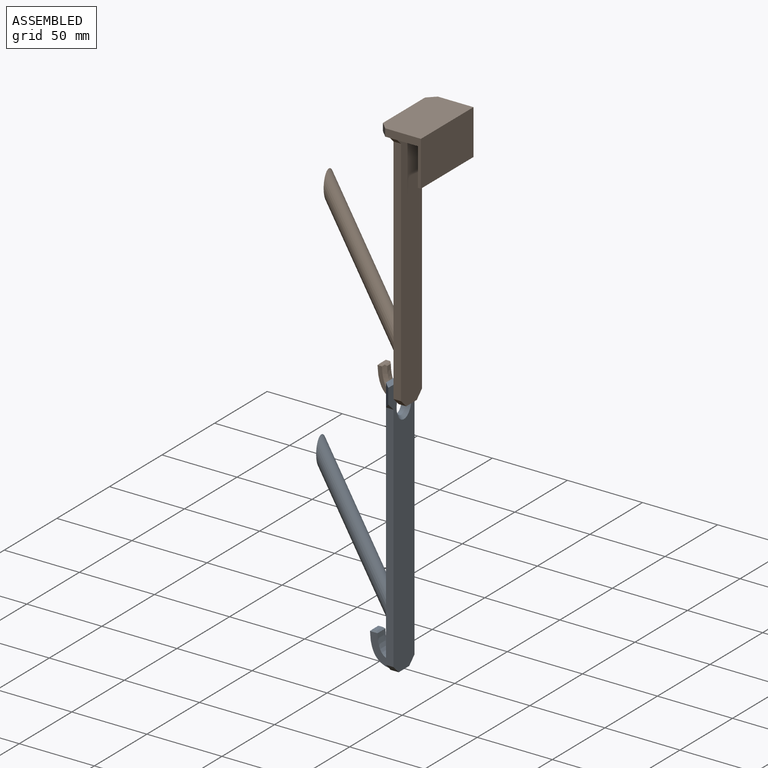
[diagram: assembled view]
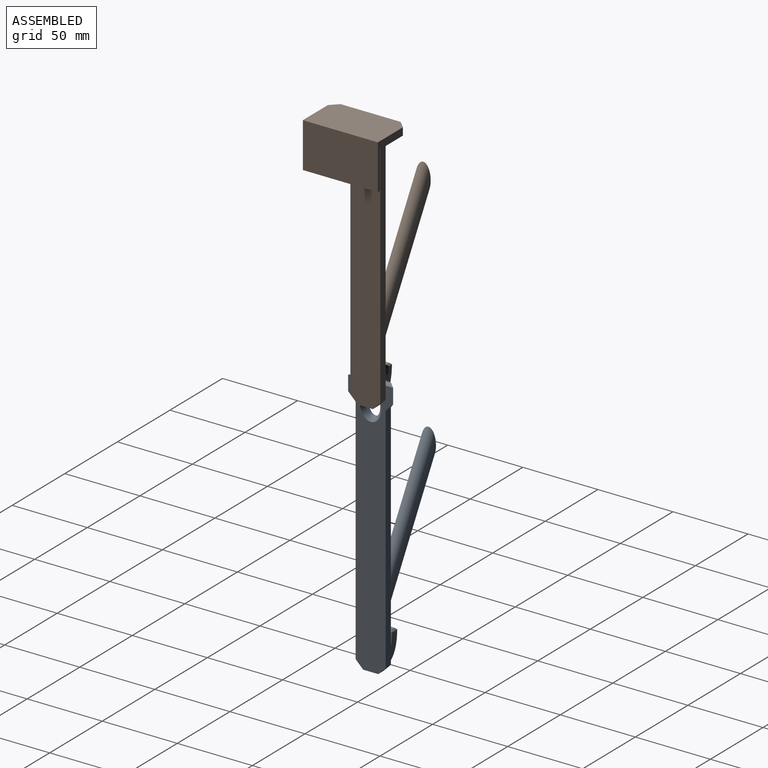
[diagram: assembled view, second angle]
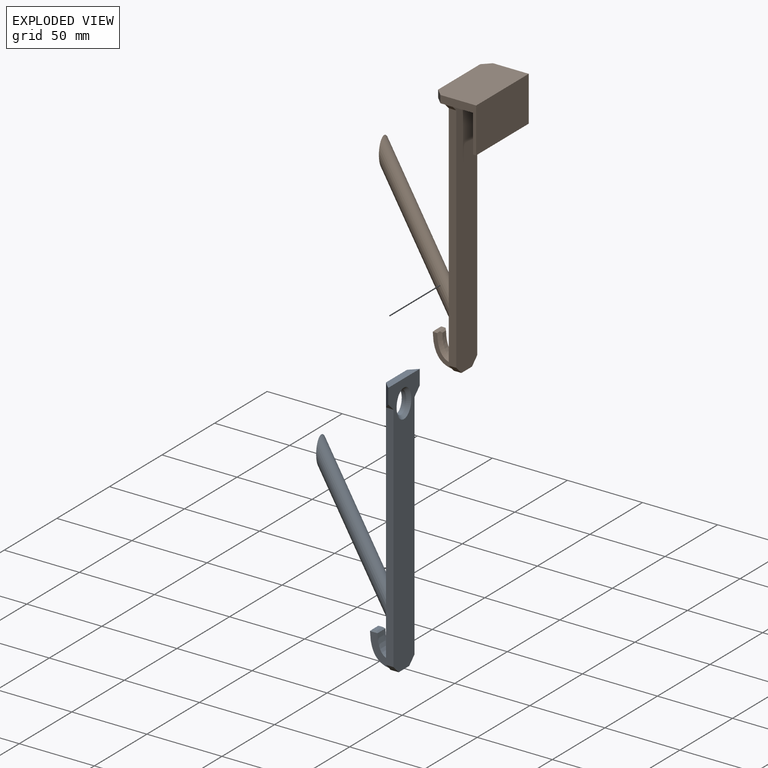
[diagram: exploded view]
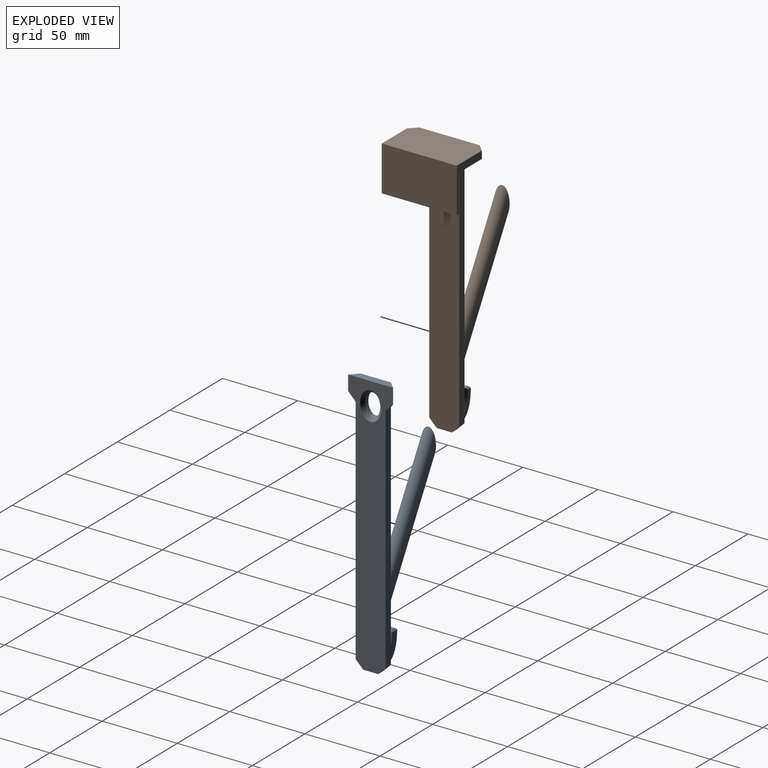
[diagram: exploded view, second angle]
ASSEMBLY  parts=2 mates=2
PART A: 29 faces, bbox 67.2x30.1x175.1 mm
  f0: plane 20x14.92mm, normal (0,1,0), area 108mm2, adj f13,f14,f15,f16,f19,f21
  f1: plane 10x5mm, normal (0,0,-1), area 50mm2, adj f6,f14,f22,f23
  f2: plane 20x14.92mm, normal (0,-1,0), area 108mm2, adj f13,f14,f16,f17,f20,f21
  f3: plane 5.5x3mm, normal (0,0,1), area 16.5mm2, adj f18,f19,f20,f21
  f4: plane 174.26x20.01mm, normal (-1,0,0), area 3023mm2, adj f5,f7,f8,f15,f16,f17,f22,f23
  f5: plane 30x5mm, normal (0,0,1), area 125mm2, adj f4,f6,f26,f27
  f6: plane 175.1x30.1mm, normal (1,0,0), area 3389mm2, adj f1,f5,f7,f8,f11,f12,f22,f23
  f7: plane 155x5mm, normal (0,-1,0), area 775mm2, adj f4,f6,f11,f22
  f8: plane 155x5mm, normal (0,1,0), area 775mm2, adj f4,f6,f12,f23
  f9: plane 20x10mm, normal (-1,0,0), area 157.1mm2, adj f10
  f10: cylinder r=5mm len=106.3mm, axis (-0.5,0,0.87), area 3055.8mm2, adj f9,f24
  f11: plane 5x5mm, normal (0,-0.71,-0.71), area 17.7mm2, adj f6,f7,f26
  f12: plane 5x5mm, normal (0,0.71,-0.71), area 17.7mm2, adj f6,f8,f27
  f13: extruded ~13.84x7.66mm, area 130.1mm2, adj f0,f2,f16,f18,f19,f20
  f14: extruded ~18.98x14.99mm, area 209.7mm2, adj f0,f1,f2,f15,f17,f21,f22,f23
  f15: plane 7.16x2.01mm, normal (-0.71,0.71,0), area 17.4mm2, adj f0,f4,f14,f16,f23
  f16: plane 11.5x2.33mm, normal (-0.65,0,0.76), area 28.1mm2, adj f0,f2,f4,f13,f15,f17
  f17: plane 7.16x2.01mm, normal (-0.71,-0.71,0), area 17.4mm2, adj f2,f4,f14,f16,f22
  f18: plane 7.46x1mm, normal (0.7,0,0.71), area 9.1mm2, adj f3,f13,f19,f20
  f19: plane 4.98x1mm, normal (0,0.71,0.71), area 5.7mm2, adj f0,f3,f13,f18,f21
  f20: plane 4.98x1mm, normal (0,-0.71,0.71), area 5.7mm2, adj f2,f3,f13,f18,f21
  f21: plane 7.5x1.02mm, normal (-0.71,0,0.7), area 9.3mm2, adj f0,f2,f3,f14,f19,f20
  f22: plane 5.75x5.01mm, normal (0,-0.71,-0.71), area 35.7mm2, adj f1,f4,f6,f7,f14,f17
  f23: plane 5.75x5.01mm, normal (0,0.71,-0.71), area 35.7mm2, adj f1,f4,f6,f8,f14,f15
  f24: bspline ~25.36x12.68mm, area 105.6mm2, adj f4,f10
  f25: extruded ~15x10mm, area 119mm2, adj f4,f28
  f26: plane 15x5mm, normal (-0.71,-0.71,0), area 88.4mm2, adj f4,f5,f6,f11
  f27: plane 15x5mm, normal (-0.71,0.71,0), area 88.4mm2, adj f4,f5,f6,f12
  f28: bspline ~19x14mm, area 130mm2, adj f6,f25
PART B: 35 faces, bbox 87.6x50.1x175.1 mm
  f0: plane 20.11x15.11mm, normal (0,1,0), area 78.5mm2, adj f4,f22,f26,f28,f30,f34
  f1: plane 10x5mm, normal (0,0,-1), area 50mm2, adj f4,f9,f22,f23,f24
  f2: plane 20.12x15.12mm, normal (0,-1,0), area 78.5mm2, adj f4,f22,f27,f29,f30,f32
  f3: plane 5.5x3mm, normal (0,0,1), area 16.5mm2, adj f28,f29,f30,f31
  f4: plane 175.01x40.01mm, normal (-1,0,0), area 3370.3mm2, adj f0,f1,f2,f8,f11,f12,f17,f18
  f5: plane 50x25mm, normal (-1,0,0), area 1250mm2, adj f6,f10,f15,f16
  f6: plane 50x2mm, normal (0,0,-1), area 100mm2, adj f5,f7,f15,f16
  f7: plane 50x30mm, normal (1,0,0), area 1500mm2, adj f6,f8,f15,f16
  f8: plane 50x28.8mm, normal (0,0,1), area 1415mm2, adj f4,f7,f15,f16,f19,f20
  f9: plane 170x40mm, normal (1,0,0), area 3475mm2, adj f1,f10,f11,f12,f17,f18,f23,f24
  f10: plane 50x26.8mm, normal (0,0,-1), area 1115mm2, adj f5,f9,f15,f16,f17,f18,f19,f20
  f11: plane 155x5mm, normal (0,-1,0), area 775mm2, adj f4,f9,f17,f23
  f12: plane 155x5mm, normal (0,1,0), area 775mm2, adj f4,f9,f18,f24
  f13: plane 20x10mm, normal (-1,0,0), area 157.1mm2, adj f14
  f14: cylinder r=5mm len=106.3mm, axis (-0.5,0,0.87), area 3055.8mm2, adj f13,f25
  f15: plane 30x23.8mm, normal (0,1,0), area 169mm2, adj f5,f6,f7,f8,f10,f19
  f16: plane 30x23.8mm, normal (0,-1,0), area 169mm2, adj f5,f6,f7,f8,f10,f20
  f17: plane 10x10mm, normal (0,-0.71,-0.71), area 70.7mm2, adj f4,f9,f10,f11
  f18: plane 10x10mm, normal (0,0.71,-0.71), area 70.7mm2, adj f4,f9,f10,f12
  f19: plane 5x5mm, normal (-0.71,0.71,0), area 35.4mm2, adj f4,f8,f10,f15
  f20: plane 5x5mm, normal (-0.71,-0.71,0), area 35.4mm2, adj f4,f8,f10,f16
  f21: extruded ~13.84x7.66mm, area 60.7mm2, adj f26,f27,f31,f33
  f22: extruded ~18.98x14.99mm, area 206.3mm2, adj f0,f1,f2,f30
  f23: plane 5x5mm, normal (0,-0.71,-0.71), area 35.4mm2, adj f1,f4,f9,f11
  f24: plane 5x5mm, normal (0,0.71,-0.71), area 35.4mm2, adj f1,f4,f9,f12
  f25: bspline ~25.36x12.68mm, area 105.6mm2, adj f4,f14
  f26: bspline ~18.16x10.69mm, area 55.2mm2, adj f0,f21,f28,f31,f33,f34
  f27: bspline ~18.13x10.65mm, area 55.2mm2, adj f2,f21,f29,f31,f32,f33
  f28: plane 3.99x1.01mm, normal (0,0.71,0.71), area 4.2mm2, adj f0,f3,f26,f30
  f29: plane 3.99x1.01mm, normal (0,-0.71,0.71), area 4.2mm2, adj f2,f3,f27,f30
  f30: plane 7.5x1.02mm, normal (-0.71,0,0.7), area 9.3mm2, adj f0,f2,f3,f22,f28,f29
  f31: plane 5.51x1.02mm, normal (0.7,0,0.71), area 6.3mm2, adj f3,f21,f26,f27
  f32: bspline ~4.02x4mm, area 6.9mm2, adj f2,f4,f27,f33
  f33: plane 5.16x2.33mm, normal (-0.65,0,0.76), area 12.8mm2, adj f4,f21,f26,f27,f32,f34
  f34: bspline ~4.02x4mm, area 6.9mm2, adj f0,f4,f26,f33
PLACE A t=(-5,0,-161.42)mm
PLACE B at identity fixed
MATE planar B.f12 <-> A.f8  axis (0,1,0) through (-24.3,0,-62.5)mm
MATE planar A.f6 <-> B.f4  axis (1,0,0) through (-26.8,-10,-219.78)mm
